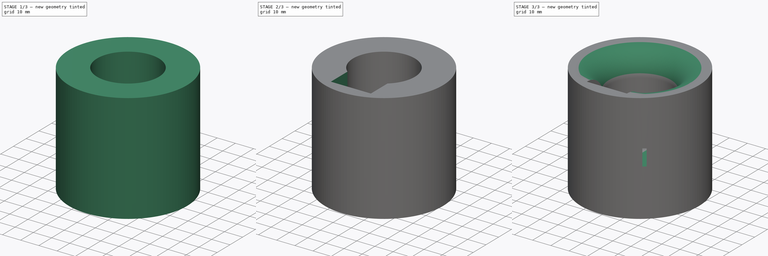
[diagram: build sequence overview — one tinted view per stage of 3, left to right]
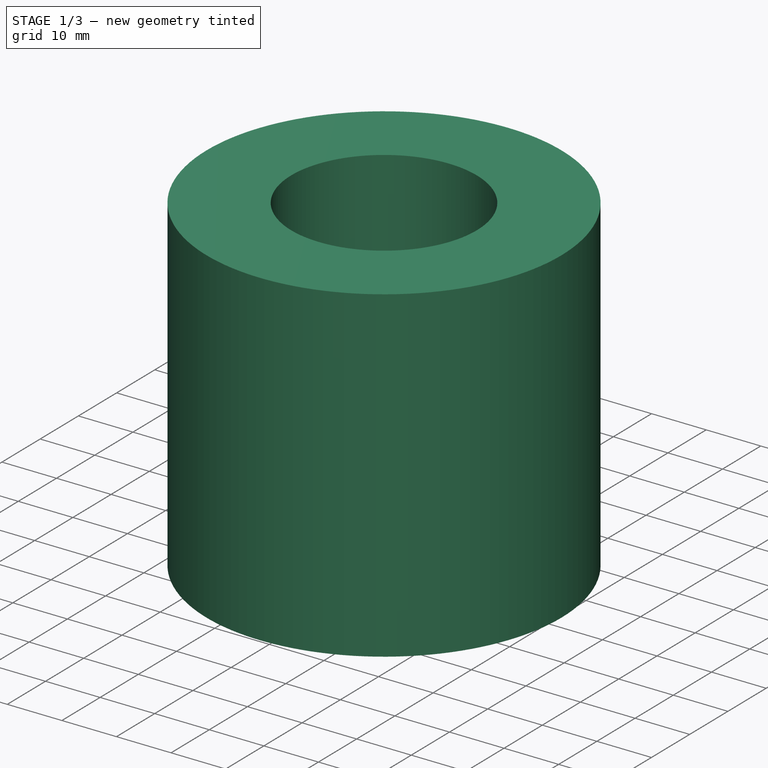
[diagram: stage 1 of 3 — iso view after this stage's code; geometry added in this stage tinted green]
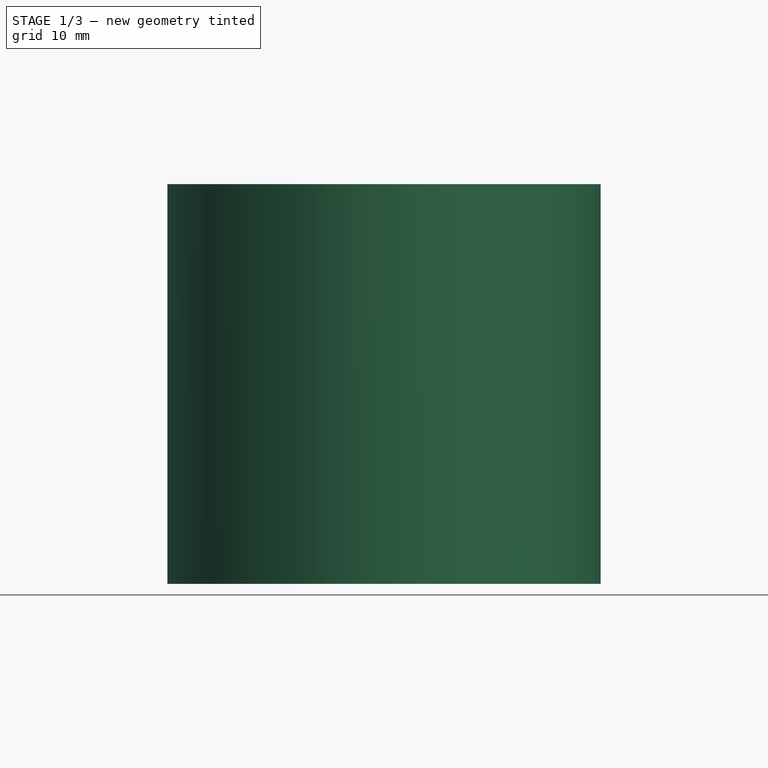
[diagram: stage 1 of 3 — front view after this stage's code; geometry added in this stage tinted green]
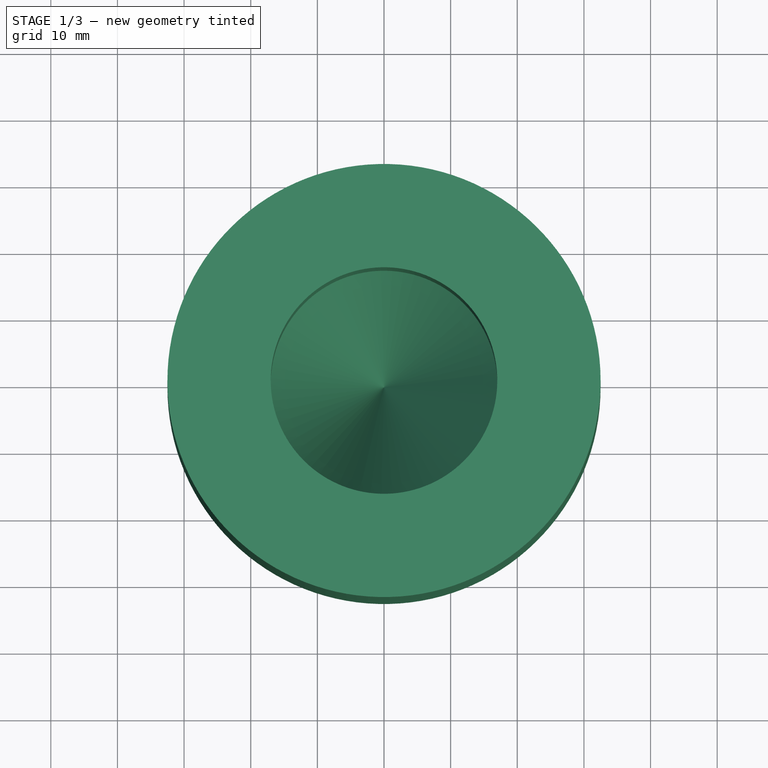
[diagram: stage 1 of 3 — top view after this stage's code; geometry added in this stage tinted green]
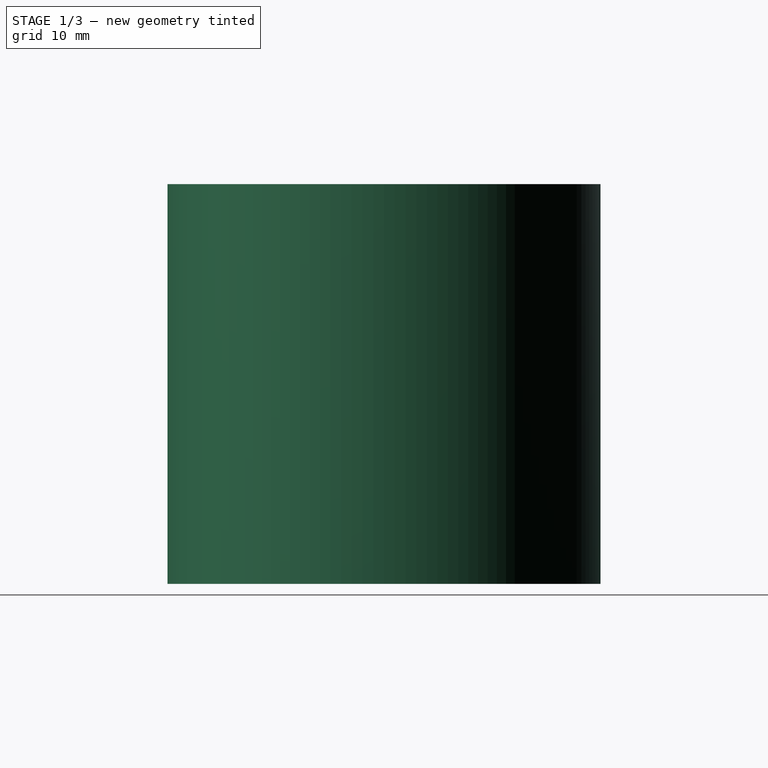
[diagram: stage 1 of 3 — right view after this stage's code; geometry added in this stage tinted green]
FCSTD DOCUMENT  (FreeCAD 0.21R33771 (Git))
Label: Tube holder V2
License: All rights reserved
LicenseURL: https://en.wikipedia.org/wiki/All_rights_reserved
objects: Sketcher::SketchObject×3, PartDesign::Pocket×2, PartDesign::Pad×1, PartDesign::Hole×1, PartDesign::Fillet×1, PartDesign::Body×1
note: 14 computed .brp shape members not serialized (recipe doc carries the construction recipe); baked Part::Feature solids carry a one-line shape summary decoded from their .brp

FEATURE [Sketcher::SketchObject] Sketch
  FullyConstrained = true
  MapMode = 5
  Support = -> [XY_Plane]
  sketch-geometry (1):
    g0: Circle CenterX=0 CenterY=0 CenterZ=0 NormalX=0 NormalY=0 NormalZ=1 AngleXU=0 Radius=32.5
  constraints (2):
    c: Coincident(g0,g-1)
    c: Diameter(g0) = 65
FEATURE [PartDesign::Pad] Pad
  Direction = (0,0,1)
  Length = 60
  Length2 = 10
  Profile = -> Sketch
  ReferenceAxis = -> Sketch [N_Axis]
  Type = 0
FEATURE [PartDesign::Hole] Hole
  BaseFeature = -> Pad
  CustomThreadClearance = 0
  Depth = 30
  DepthType = 0
  Diameter = 34
  DrillForDepth = false
  DrillPoint = 1
  DrillPointAngle = 60
  HoleCutCountersinkAngle = 90
  HoleCutCustomValues = false
  HoleCutDepth = 0
  HoleCutDiameter = 33.6
  HoleCutType = 0
  ModelThread = false
  Profile = -> Pad [Face3]
  Tapered = false
  TaperedAngle = 90
  ThreadClass = 0
  ThreadDepth = 30
  ThreadDepthType = 0
  ThreadDirection = 0
  ThreadFit = 0
  ThreadSize = 0
  ThreadType = 0
  Threaded = false
  UseCustomThreadClearance = false
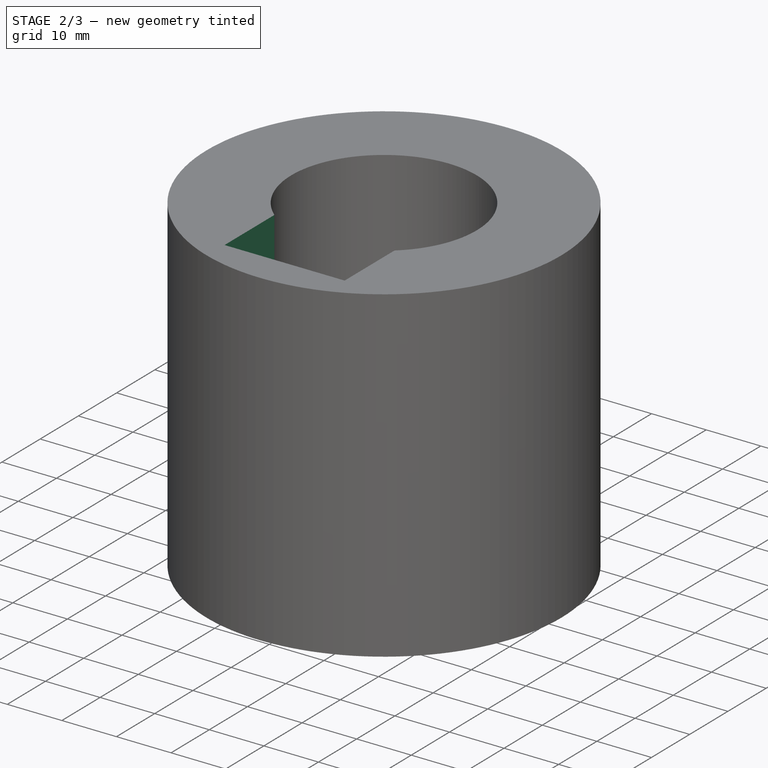
[diagram: stage 2 of 3 — iso view after this stage's code; geometry added in this stage tinted green]
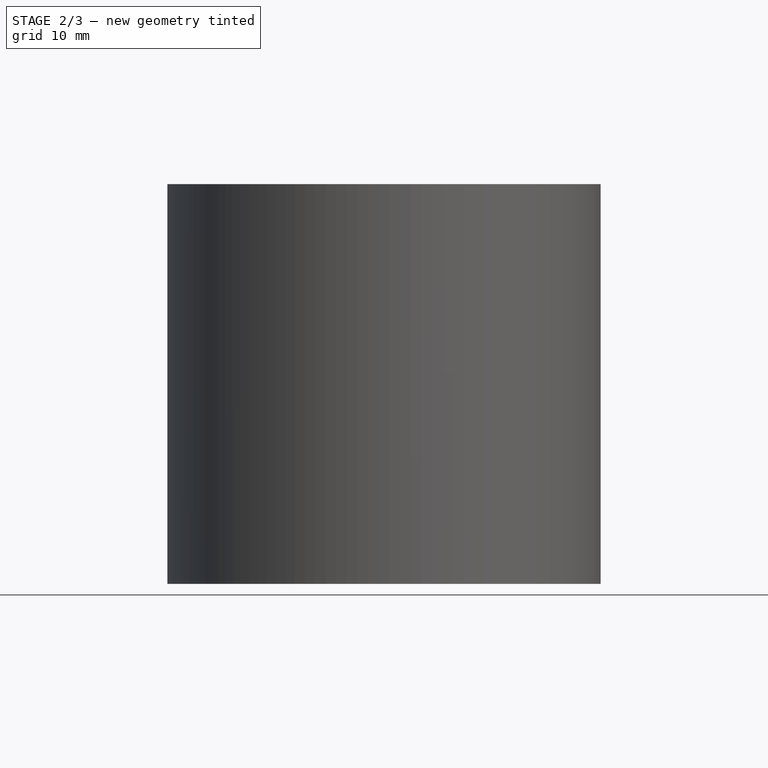
[diagram: stage 2 of 3 — front view after this stage's code; geometry added in this stage tinted green]
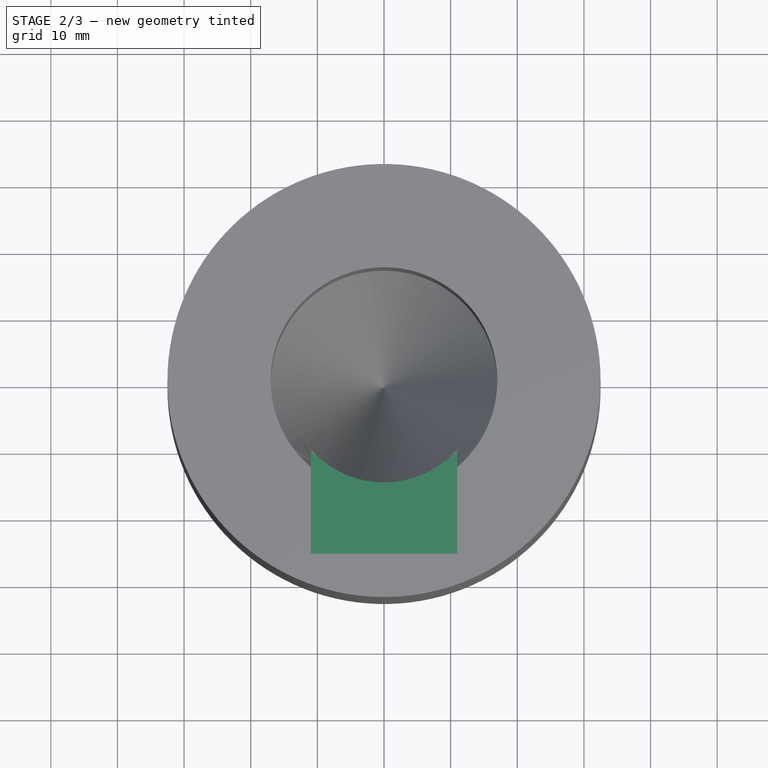
[diagram: stage 2 of 3 — top view after this stage's code; geometry added in this stage tinted green]
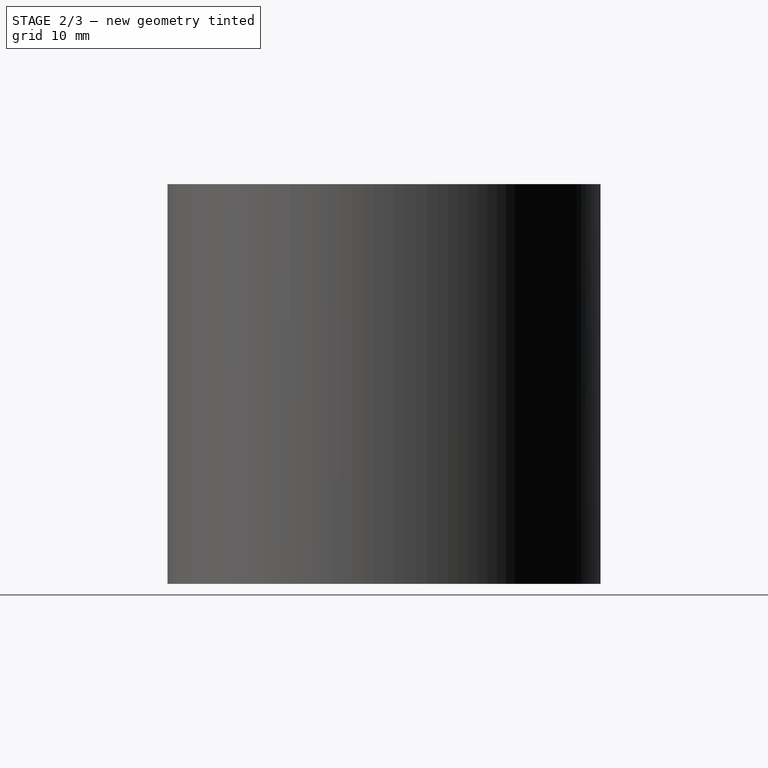
[diagram: stage 2 of 3 — right view after this stage's code; geometry added in this stage tinted green]
FEATURE [Sketcher::SketchObject] Sketch001
  ExternalGeometry = -> [Hole]
  FullyConstrained = true
  MapMode = 5
  Placement = pos=(0,0,60) rot=(0,0,1;0rad)
  Support = -> [Hole]
  sketch-geometry (7):
    g0: LineSegment StartX=0 StartY=0 StartZ=0 EndX=0 EndY=-10 EndZ=0
    g1: LineSegment StartX=0 StartY=-10 StartZ=0 EndX=-11 EndY=-10 EndZ=0
    g2: LineSegment StartX=-11 StartY=-10 StartZ=0 EndX=-11 EndY=-26 EndZ=0
    g3: LineSegment StartX=-11 StartY=-26 StartZ=0 EndX=0 EndY=-26 EndZ=0
    g4: LineSegment StartX=0 StartY=-10 StartZ=0 EndX=11 EndY=-10 EndZ=0
    g5: LineSegment StartX=11 StartY=-10 StartZ=0 EndX=11 EndY=-26 EndZ=0
    g6: LineSegment StartX=11 StartY=-26 StartZ=0 EndX=0 EndY=-26 EndZ=0
  constraints (20):
    c: PointOnObject(g0,g-2)
    c: Distance(g0) = 10
    c: Coincident(g1,g2)
    c: Coincident(g2,g3)
    c: Horizontal(g1)
    c: Horizontal(g3)
    c: Vertical(g2)
    c: Coincident(g1,g0)
    c: Coincident(g4,g5)
    c: Coincident(g5,g6)
    c: Horizontal(g4)
    c: Horizontal(g6)
    c: Vertical(g5)
    c: Coincident(g4,g1)
    c: Coincident(g6,g3)
    c: Equal(g3,g6)
    c: Coincident(g0,g-3)
    c: Distance(g3) = 11
    c: PointOnObject(g3,g-2)
    c: Distance(g5) = 16
FEATURE [PartDesign::Pocket] Pocket
  BaseFeature = -> Hole
  Direction = (0,0,-1)
  Length = 34
  Length2 = 5
  Profile = -> Sketch001
  ReferenceAxis = -> Sketch001 [N_Axis]
  Type = 0
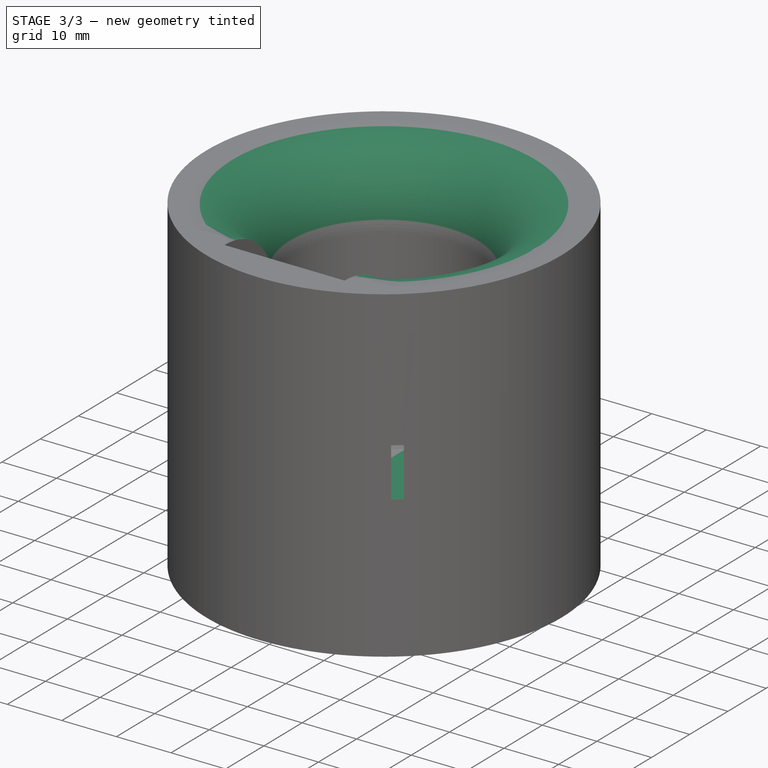
[diagram: stage 3 of 3 — iso view after this stage's code; geometry added in this stage tinted green]
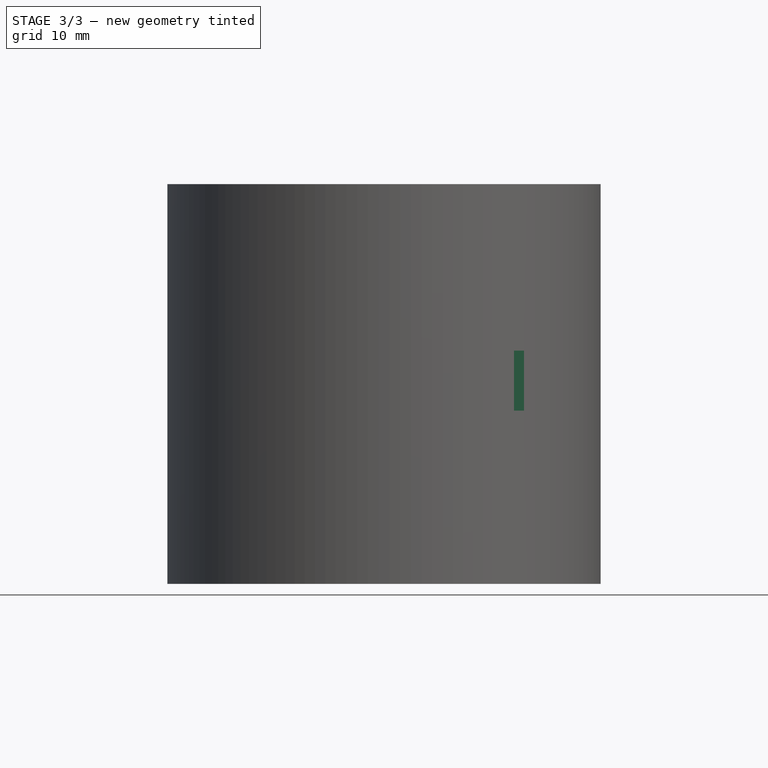
[diagram: stage 3 of 3 — front view after this stage's code; geometry added in this stage tinted green]
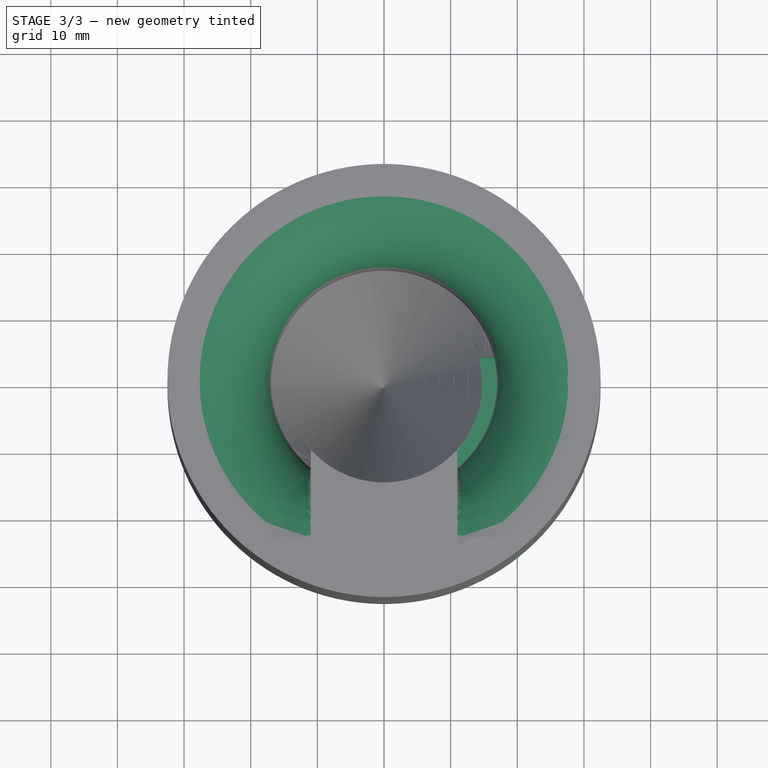
[diagram: stage 3 of 3 — top view after this stage's code; geometry added in this stage tinted green]
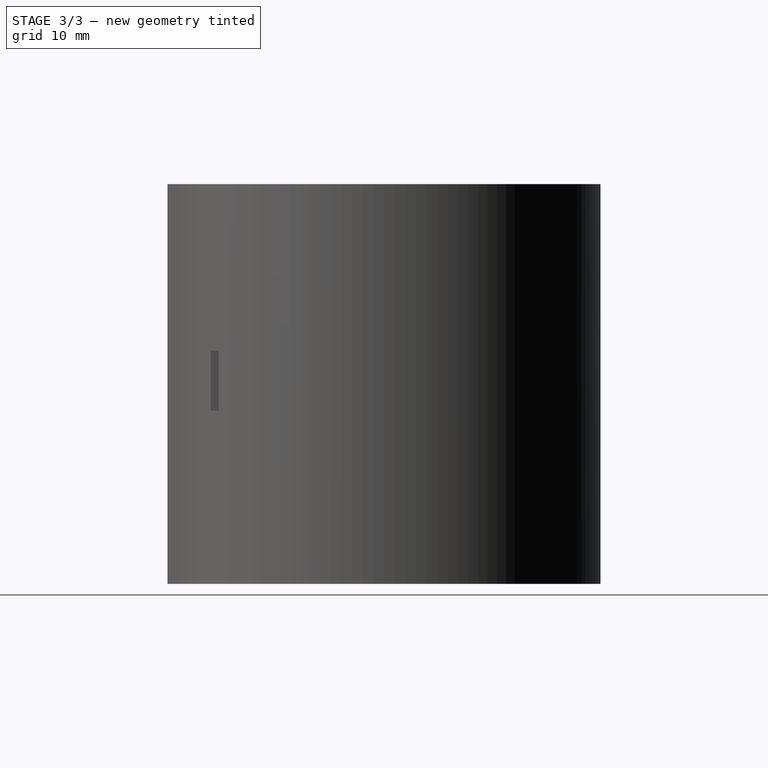
[diagram: stage 3 of 3 — right view after this stage's code; geometry added in this stage tinted green]
FEATURE [Sketcher::SketchObject] Sketch002
  ExternalGeometry = -> [Pocket]
  FullyConstrained = true
  MapMode = 5
  Placement = pos=(11,0,0) rot=(0.57735,-0.57735,-0.57735;2.0944rad)
  Support = -> [Pocket]
  sketch-geometry (4):
    g0: LineSegment StartX=26 StartY=26 StartZ=0 EndX=-4 EndY=26 EndZ=0
    g1: LineSegment StartX=-4 StartY=26 StartZ=0 EndX=-4 EndY=35 EndZ=0
    g2: LineSegment StartX=-4 StartY=35 StartZ=0 EndX=26 EndY=35 EndZ=0
    g3: LineSegment StartX=26 StartY=35 StartZ=0 EndX=26 EndY=26 EndZ=0
  constraints (11):
    c: Coincident(g0,g1)
    c: Coincident(g1,g2)
    c: Coincident(g2,g3)
    c: Coincident(g3,g0)
    c: Horizontal(g0)
    c: Horizontal(g2)
    c: Vertical(g1)
    c: Vertical(g3)
    c: Coincident(g0,g-4)
    c: Distance(g0) = 30
    c: Distance(g1) = 9
FEATURE [PartDesign::Pocket] Pocket001
  BaseFeature = -> Pocket
  Direction = (1,0,0)
  Length = 10
  Length2 = 5
  Profile = -> Sketch002
  ReferenceAxis = -> Sketch002 [N_Axis]
  Type = 0
FEATURE [PartDesign::Fillet] Fillet
  Base = -> Pocket001 [Edge8]
  BaseFeature = -> Pocket001
  Radius = 13
  SupportTransform = false
  UseAllEdges = false
FEATURE [PartDesign::Body] Body
  Group = -> [Sketch,Pad,Hole,Sketch001,Pocket,Sketch002,Pocket001,Fillet]
  Origin = -> Origin
  Tip = -> Fillet
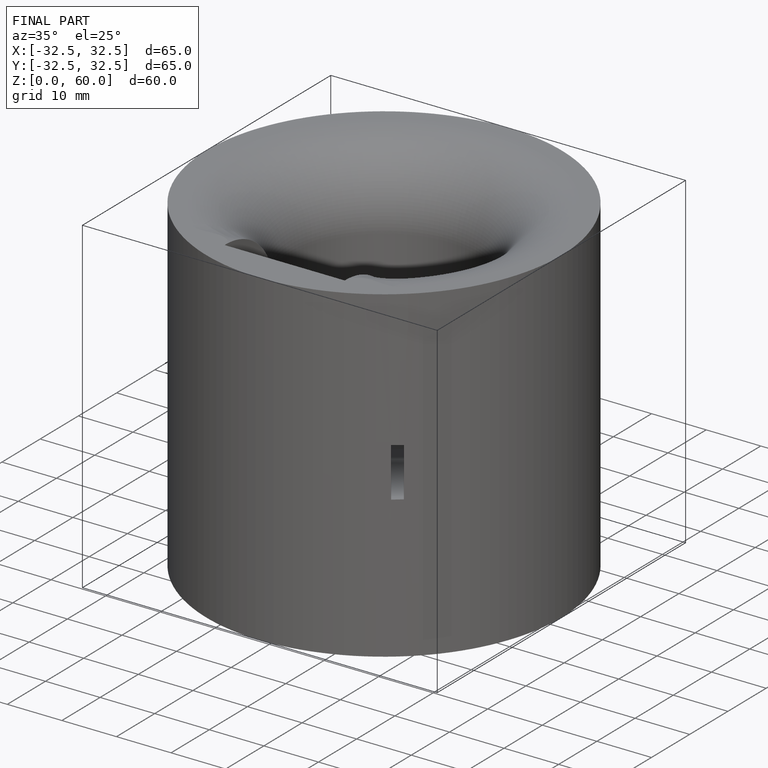
[diagram: finished part — iso view with bounding-box wireframe]
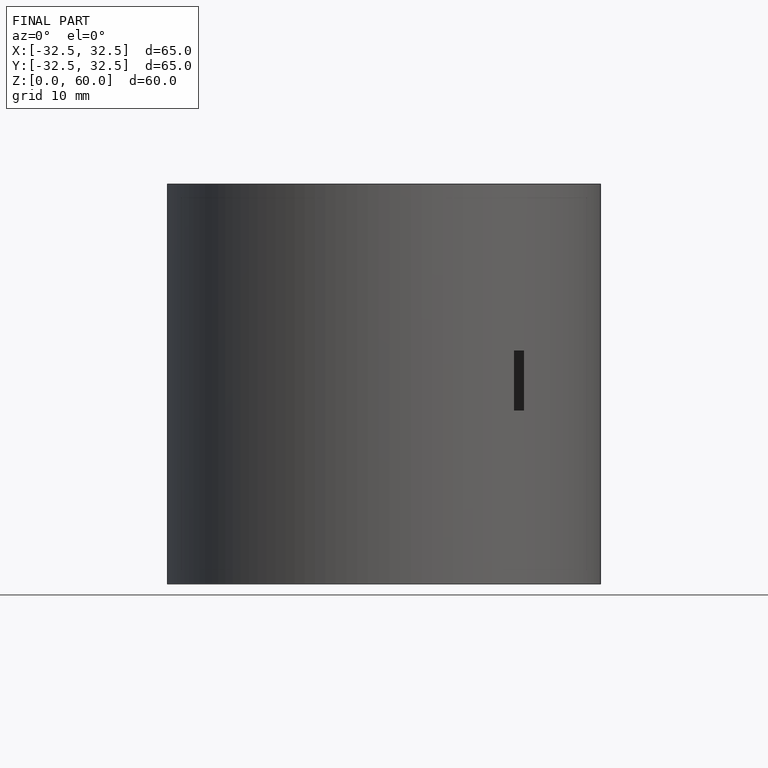
[diagram: finished part — front view with bounding-box wireframe]
